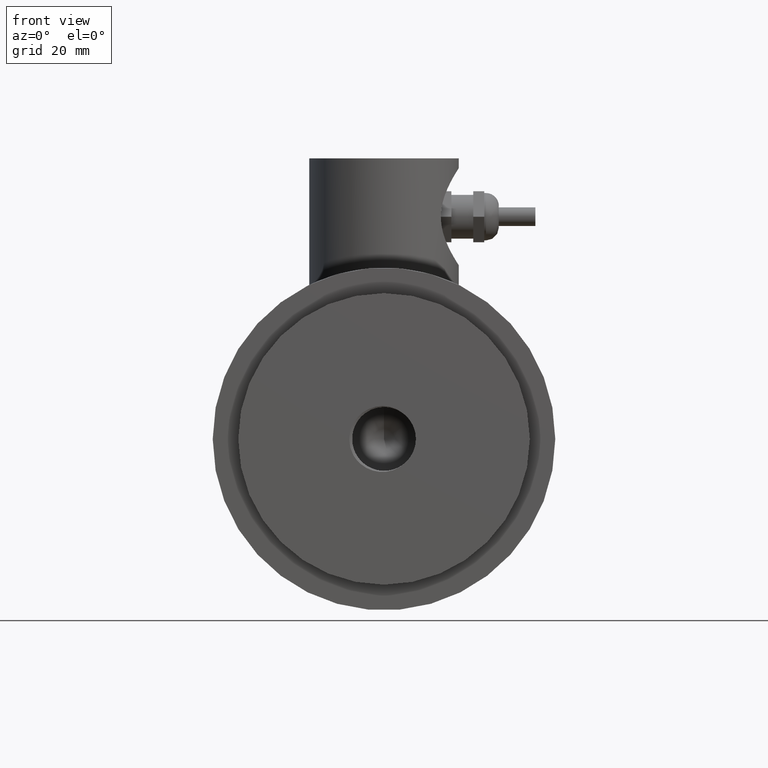
[diagram: clean part render]
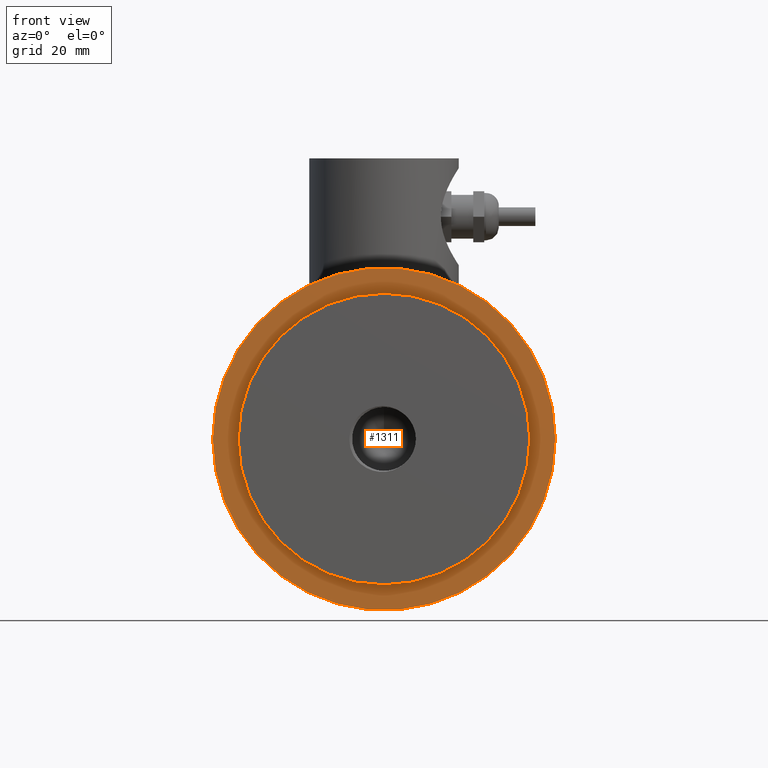
[diagram: same view with one face highlighted and labeled with its STEP entity id]
A machine part, front view. The second image highlights one B-rep face of the part: STEP entity #1311.
In plain terms, the highlighted planar face has unit normal (0, 1, 0).
Its self-contained STEP definition (entity closure, byte-faithful):
#110=FACE_BOUND('',#301,.T.);
#137=PLANE('',#1427);
#214=FACE_OUTER_BOUND('',#300,.T.);
#300=EDGE_LOOP('',(#1170));
#301=EDGE_LOOP('',(#1171));
#501=CIRCLE('',#1428,1.8503937007874);
#502=CIRCLE('',#1429,1.575);
#624=VERTEX_POINT('',#5873);
#625=VERTEX_POINT('',#5875);
#809=EDGE_CURVE('',#624,#624,#501,.T.);
#810=EDGE_CURVE('',#625,#625,#502,.T.);
#1170=ORIENTED_EDGE('',*,*,#809,.F.);
#1171=ORIENTED_EDGE('',*,*,#810,.T.);
#1311=ADVANCED_FACE('',(#214,#110),#137,.F.);
#1427=AXIS2_PLACEMENT_3D('',#5872,#1713,#1714);
#1428=AXIS2_PLACEMENT_3D('',#5874,#1715,#1716);
#1429=AXIS2_PLACEMENT_3D('',#5876,#1717,#1718);
#1713=DIRECTION('center_axis',(0.,1.,0.));
#1714=DIRECTION('ref_axis',(-1.,0.,0.));
#1715=DIRECTION('center_axis',(0.,1.,0.));
#1716=DIRECTION('ref_axis',(-1.,0.,0.));
#1717=DIRECTION('center_axis',(0.,1.,0.));
#1718=DIRECTION('ref_axis',(1.,0.,0.));
#5872=CARTESIAN_POINT('Origin',(0.,0.433070866141732,0.));
#5873=CARTESIAN_POINT('',(1.8503937007874,0.433070866141732,-2.26607872283172E-16));
#5874=CARTESIAN_POINT('Origin',(0.,0.433070866141732,0.));
#5875=CARTESIAN_POINT('',(-1.575,0.433070866141732,1.92881870865708E-16));
#5876=CARTESIAN_POINT('Origin',(0.,0.433070866141732,0.));